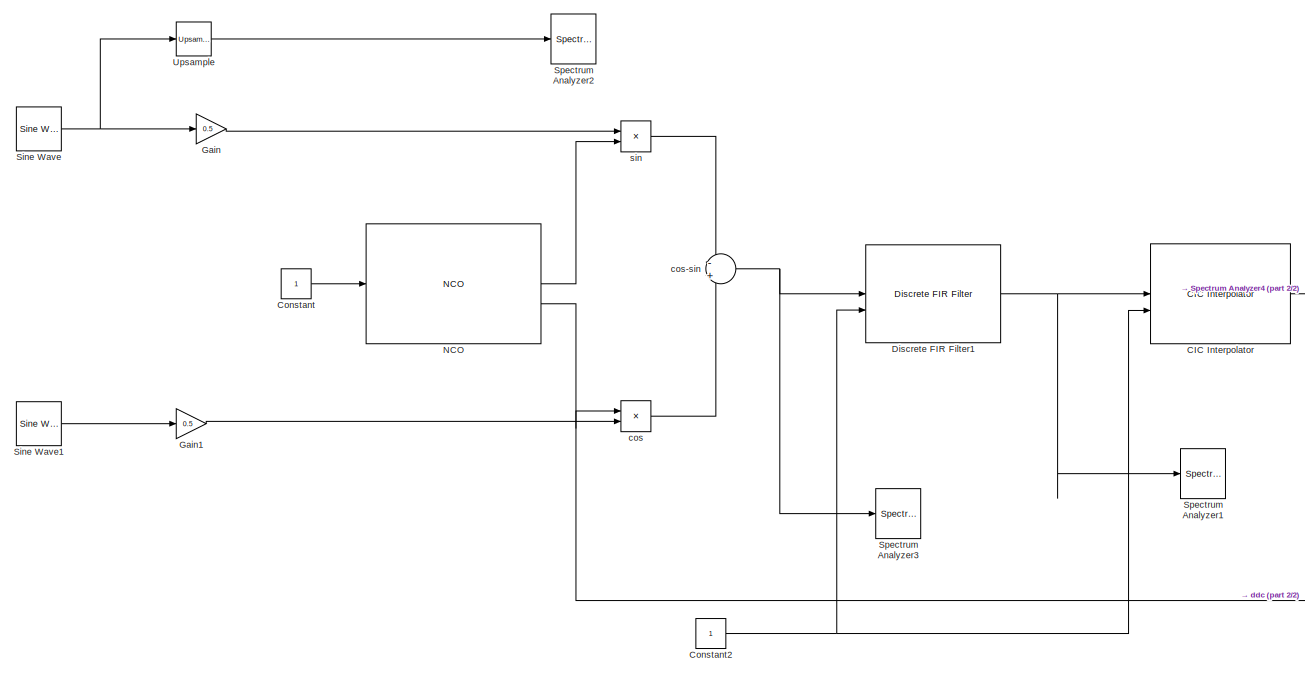
[diagram: root canvas - part 1/2, center side, full height]
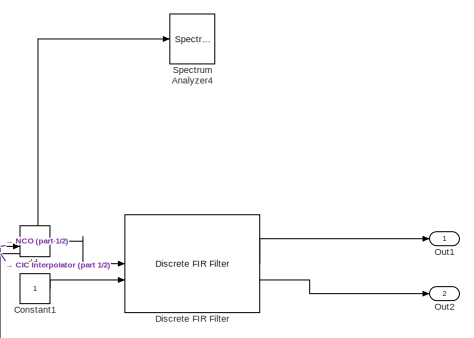
[diagram: root canvas - part 2/2, top right region]
MODEL slx_c74e2a50d898
KIND model
CONFIG AbsTol = auto
CONFIG EnableMultiTasking = off
CONFIG FixedStep = auto
CONFIG MaxStep = auto
CONFIG MinStep = auto
CONFIG RelTol = 1e-3
CONFIG SampleTimeConstraint = Unconstrained
CONFIG SolverName = VariableStepAuto
CONFIG StartTime = 0.0
CONFIG StopTime = 0.1
BLOCK [Reference] CIC Interpolator  REF=dsphdlfiltering2/CIC Interpolator
  SourceBlock = dsphdlfiltering2/CIC Interpolator
  SourceType = CIC Interpolator
BLOCK [Constant] Constant
  OutDataTypeStr = boolean
  SampleTime = 1/1000000
BLOCK [Constant] Constant1
  OutDataTypeStr = boolean
  SampleTime = 1/1000000
BLOCK [Constant] Constant2
  OutDataTypeStr = boolean
  SampleTime = 1/1000000
BLOCK [Reference] Discrete FIR Filter  REF=dsphdlfiltering2/Discrete FIR Filter
  SourceBlock = dsphdlfiltering2/Discrete FIR Filter
  SourceType = Discrete FIR Filter
BLOCK [Reference] Discrete FIR Filter1  REF=dsphdlfiltering2/Discrete FIR Filter
  SourceBlock = dsphdlfiltering2/Discrete FIR Filter
  SourceType = Discrete FIR Filter
BLOCK [Gain] Gain
  Gain = 0.5
BLOCK [Gain] Gain1
  Gain = 0.5
BLOCK [Reference] NCO  REF=dsphdlsigops2/NCO
  LibrarySourceBlock = dsphdlsrcs2/NCO
  SourceBlock = dsphdlsigops2/NCO
  SourceType = NCO
BLOCK [Outport] Out1
BLOCK [Outport] Out2
  Port = 2
BLOCK [Reference] Sine Wave  REF=dspsrcs4/Sine Wave
  LibrarySourceBlock = dsphdlsupportsrcs/Sine Wave
  SourceBlock = dspsrcs4/Sine Wave
  SourceType = Sine Wave
BLOCK [Reference] Sine Wave1  REF=dspsrcs4/Sine Wave
  LibrarySourceBlock = dsphdlsupportsrcs/Sine Wave
  SourceBlock = dspsrcs4/Sine Wave
  SourceType = Sine Wave
BLOCK [SpectrumAnalyzer] Spectrum Analyzer1
  GraphicalSettings = {"GraphicalSettings":{"Style":{"BackgroundColor":[0.12941176470588237,0.12941176470588237,0.12941176470588237],"AxesColor":[0.07058823529411765,0.07058823529411765,0.07058823529411765],"LabelsColor":[0.8509803921568627,0.8509803921568627,0.8509803921568627],"PreserveColors":false,"Visible":[true],"LineStyle":["-"],"LineColor":[[1,1,0.06666666666666667]],"LineWidth":[1.5],"Marker":["none"],"FontSiz...<+927ch>  <repeated x4 — deduplicated; at blocks: Spectrum Analyzer1, Spectrum Analyzer2, Spectrum Analyzer3, Spectrum Analyzer4>
  ScopeFrameLocation = window
  SelectedToolstripTab = spectrumAnalyzerToolstrip.measurementsTab
  Span = 99999.99999999999
  StartFrequency = -49999.99999999999
  StopFrequency = 49999.99999999999
  WasSavedAsWebScope = on
  WindowPosition = [111.000000,166.000000,800.000000,500.000000,]
  YLimits = [-143.3023629,42.5637605]
BLOCK [SpectrumAnalyzer] Spectrum Analyzer2
  ScopeFrameLocation = window
  SelectedToolstripTab = spectrumAnalyzerToolstrip.measurementsTab
  Span = 99999.99999999999
  StartFrequency = -49999.99999999999
  StopFrequency = 49999.99999999999
  WasSavedAsWebScope = on
  WindowPosition = [111.000000,166.000000,800.000000,500.000000,]
  YLimits = [-251.48815273,1.78780692]
BLOCK [SpectrumAnalyzer] Spectrum Analyzer3
  ScopeFrameLocation = window
  SelectedToolstripTab = spectrumAnalyzerToolstrip.measurementsTab
  Span = 99999.99999999999
  StartFrequency = -49999.99999999999
  StopFrequency = 49999.99999999999
  WasSavedAsWebScope = on
  WindowPosition = [111.000000,166.000000,800.000000,500.000000,]
  YLimits = [-46.05824335,31.7621304]
BLOCK [SpectrumAnalyzer] Spectrum Analyzer4
  ScopeFrameLocation = window
  SelectedToolstripTab = spectrumAnalyzerToolstrip.measurementsTab
  Span = 99999.99999999999
  StartFrequency = -49999.99999999999
  StopFrequency = 49999.99999999999
  WasSavedAsWebScope = on
  WindowPosition = [111.000000,166.000000,800.000000,500.000000,]
  YLimits = [-255.1066594,54.91063616]
BLOCK [Reference] Upsample  REF=dspsigops/Upsample
  LibrarySourceBlock = dsphdlsupportsigops/Upsample
  SourceBlock = dspsigops/Upsample
  SourceType = Upsample
  UserDataPersistent = on
BLOCK [Product] cos
  OutDataTypeStr = double
BLOCK [Sum] cos-sin
  AccumDataTypeStr = double
  Inputs = -+
  LockScale = on
  OutDataTypeStr = int16
BLOCK [Product] ddc
  OutDataTypeStr = double
BLOCK [Product] sin
  OutDataTypeStr = double
LINE CIC Interpolator:1 -> Spectrum Analyzer4:1
LINE Constant1:1 -> Discrete FIR Filter:2
NET Constant2:1 -> CIC Interpolator:2, Discrete FIR Filter1:2
LINE Constant:1 -> NCO:1
NET Discrete FIR Filter1:1 -> CIC Interpolator:1, Spectrum Analyzer1:1
LINE Discrete FIR Filter:1 -> Out1:1
LINE Discrete FIR Filter:2 -> Out2:1
LINE Gain1:1 -> cos:2
LINE Gain:1 -> sin:1
LINE NCO:1 -> sin:2
NET NCO:2 -> cos:1, ddc:2
LINE Sine Wave1:1 -> Gain1:1
NET Sine Wave:1 -> Gain:1, Upsample:1
LINE Upsample:1 -> Spectrum Analyzer2:1
NET cos-sin:1 -> Discrete FIR Filter1:1, Spectrum Analyzer3:1
LINE cos:1 -> cos-sin:2
LINE ddc:1 -> Discrete FIR Filter:1
LINE sin:1 -> cos-sin:1
note: NET lines group one-source signal fan-out (src -> all destinations, sorted); 1:1 wires keep LINE
